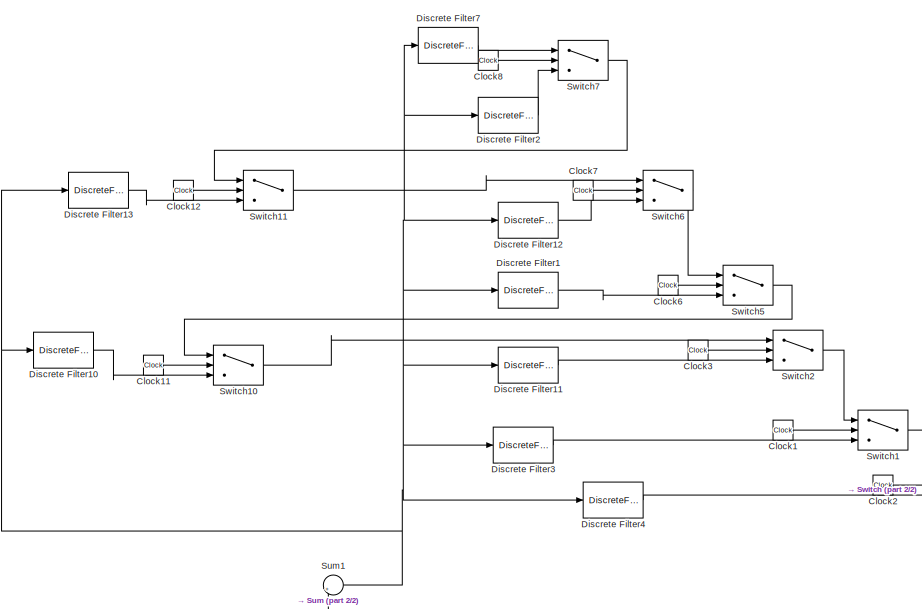
[diagram: root canvas - part 1/2, left side, full height]
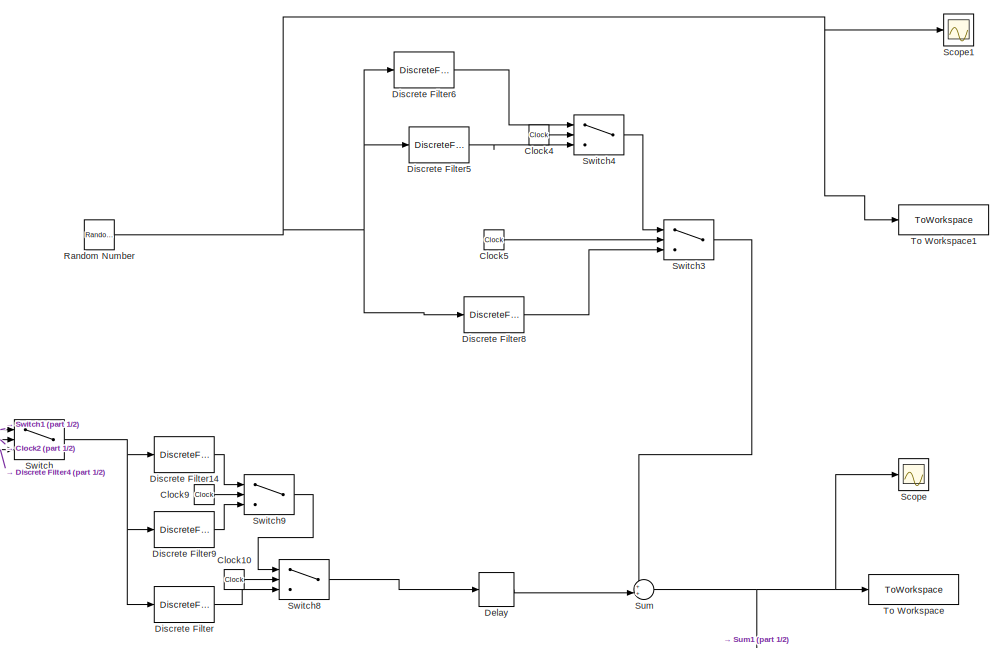
[diagram: root canvas - part 2/2, right side, full height]
MODEL slx_4a99604da0e6
KIND model
CONFIG AbsTol = auto
CONFIG EnableMultiTasking = off
CONFIG FixedStep = auto
CONFIG MaxStep = auto
CONFIG MinStep = auto
CONFIG RelTol = 1e-3
CONFIG SampleTimeConstraint = Unconstrained
CONFIG SolverName = VariableStepAuto
CONFIG StartTime = 0.0
CONFIG StopTime = 8500
BLOCK [Clock] Clock1
BLOCK [Clock] Clock10
BLOCK [Clock] Clock11
BLOCK [Clock] Clock12
BLOCK [Clock] Clock2
BLOCK [Clock] Clock3
BLOCK [Clock] Clock4
BLOCK [Clock] Clock5
BLOCK [Clock] Clock6
BLOCK [Clock] Clock7
BLOCK [Clock] Clock8
BLOCK [Clock] Clock9
BLOCK [Delay] Delay
  DelayLength = 6
  InputPortMap = u0
  Ports = [1, 1]
  SampleTime = 0.1
BLOCK [DiscreteFilter] Discrete Filter
  Denominator = [1 -0.8]
  InputPortMap = u0
  Ports = [1, 1]
  SampleTime = 0.1
BLOCK [DiscreteFilter] Discrete Filter1
  Denominator = [1 -1]
  InputPortMap = u0
  Numerator = [0.2387 -0.462 0.2301]*2.5
  Ports = [1, 1]
  SampleTime = 0.1
BLOCK [DiscreteFilter] Discrete Filter10
  Denominator = [1 -1]
  InputPortMap = u0
  Numerator = [0.2387 -0.462 0.2301]*2
  Ports = [1, 1]
  SampleTime = 0.1
BLOCK [DiscreteFilter] Discrete Filter11
  Denominator = [1 -1]
  InputPortMap = u0
  Numerator = [0.2387 -0.462 0.2301]
  Ports = [1, 1]
  SampleTime = 0.1
BLOCK [DiscreteFilter] Discrete Filter12
  Denominator = [1 -1]
  InputPortMap = u0
  Numerator = [0.1541 -0.3037 0.1509]
  Ports = [1, 1]
  SampleTime = 0.1
BLOCK [DiscreteFilter] Discrete Filter13
  Denominator = [1 -1]
  InputPortMap = u0
  Numerator = [0.1541 -0.3037 0.1509]*2
  Ports = [1, 1]
  SampleTime = 0.1
BLOCK [DiscreteFilter] Discrete Filter14
  Denominator = [1 -0.9]
  InputPortMap = u0
  Ports = [1, 1]
  SampleTime = 0.1
BLOCK [DiscreteFilter] Discrete Filter2
  Denominator = [1 -1]
  InputPortMap = u0
  Numerator = [0.1541 -0.3037 0.1509]*3
  Ports = [1, 1]
  SampleTime = 0.1
BLOCK [DiscreteFilter] Discrete Filter3
  Denominator = [1 -1]
  InputPortMap = u0
  Numerator = [0.11 -0.19 0.086]*4
  Ports = [1, 1]
  SampleTime = 0.1
BLOCK [DiscreteFilter] Discrete Filter4
  Denominator = [1 -1]
  InputPortMap = u0
  Numerator = [0.11 -0.19 0.086]*5
  Ports = [1, 1]
  SampleTime = 0.1
BLOCK [DiscreteFilter] Discrete Filter5
  Denominator = [1 -0.35 -0.47 0.21]
  InputPortMap = u0
  Numerator = [1 0.6]
  Ports = [1, 1]
  SampleTime = 0.1
BLOCK [DiscreteFilter] Discrete Filter6
  Denominator = [1 -0.375 -0.47 0.21]
  InputPortMap = u0
  Numerator = [1 0.6]
  Ports = [1, 1]
  SampleTime = 0.1
BLOCK [DiscreteFilter] Discrete Filter7
  Denominator = [1 -1]
  InputPortMap = u0
  Numerator = [0.1665 -0.3277 0.163]
  Ports = [1, 1]
  SampleTime = 0.1
BLOCK [DiscreteFilter] Discrete Filter8
  Denominator = [1 -0.4 -0.47 0.21]
  InputPortMap = u0
  Numerator = [1 0.6]
  Ports = [1, 1]
  SampleTime = 0.1
BLOCK [DiscreteFilter] Discrete Filter9
  Denominator = [1 -0.8]
  InputPortMap = u0
  Ports = [1, 1]
  SampleTime = 0.1
BLOCK [RandomNumber] Random Number
  SampleTime = 0.1
  Seed = se
BLOCK [Scope] Scope
  Floating = off
  NumInputPorts = 1
  Ports = [1]
  ScopeSpecificationString = Simulink.scopes.TimeScopeBlockCfg('CurrentConfiguration', extmgr.ConfigurationSet(extmgr.Configuration('Core','General UI',true),extmgr.Configuration('Core','Source UI',true),extmgr.Configuration('Sources','WiredSimulink',true,'DataLoggingVariableName','ScopeData1'),extmgr.Configuration('Visuals','Time Domain',true,'SerializedDisplays',{struct('MinYLimReal','-10.34161','MaxYLimReal','10.01666','YL...<+1397ch>
BLOCK [Scope] Scope1
  Floating = off
  NumInputPorts = 1
  Ports = [1]
  ScopeSpecificationString = Simulink.scopes.TimeScopeBlockCfg('CurrentConfiguration', extmgr.ConfigurationSet(extmgr.Configuration('Core','General UI',true),extmgr.Configuration('Core','Source UI',true),extmgr.Configuration('Sources','WiredSimulink',true),extmgr.Configuration('Visuals','Time Domain',true,'SerializedDisplays',{struct('MinYLimReal','-9.08382','MaxYLimReal','9.68399','YLabelReal','','MinYLimMag','0.00000','MaxY...<+1352ch>
BLOCK [Sum] Sum
  Inputs = ++|
  Ports = [2, 1]
BLOCK [Sum] Sum1
  Inputs = |+-
  Ports = [2, 1]
BLOCK [Switch] Switch
  Criteria = u2 > Threshold
  InputSameDT = off
  SaturateOnIntegerOverflow = off
  Threshold = 1500
BLOCK [Switch] Switch1
  Criteria = u2 > Threshold
  InputSameDT = off
  SaturateOnIntegerOverflow = off
  Threshold = 2000
BLOCK [Switch] Switch10
  Criteria = u2 > Threshold
  InputSameDT = off
  SaturateOnIntegerOverflow = off
  Threshold = 4000
BLOCK [Switch] Switch11
  Criteria = u2 > Threshold
  InputSameDT = off
  SaturateOnIntegerOverflow = off
  Threshold = 6500
BLOCK [Switch] Switch2
  Criteria = u2 > Threshold
  InputSameDT = off
  SaturateOnIntegerOverflow = off
  Threshold = 3500
BLOCK [Switch] Switch3
  Criteria = u2 > Threshold
  InputSameDT = off
  SaturateOnIntegerOverflow = off
  Threshold = 3500
BLOCK [Switch] Switch4
  Criteria = u2 > Threshold
  InputSameDT = off
  SaturateOnIntegerOverflow = off
  Threshold = 6000
BLOCK [Switch] Switch5
  Criteria = u2 > Threshold
  InputSameDT = off
  SaturateOnIntegerOverflow = off
  Threshold = 4500
BLOCK [Switch] Switch6
  Criteria = u2 > Threshold
  InputSameDT = off
  SaturateOnIntegerOverflow = off
  Threshold = 6000
BLOCK [Switch] Switch7
  Criteria = u2 > Threshold
  InputSameDT = off
  SaturateOnIntegerOverflow = off
  Threshold = 7000
BLOCK [Switch] Switch8
  Criteria = u2 > Threshold
  InputSameDT = off
  SaturateOnIntegerOverflow = off
  Threshold = 3500
BLOCK [Switch] Switch9
  Criteria = u2 > Threshold
  InputSameDT = off
  SaturateOnIntegerOverflow = off
  Threshold = 6000
BLOCK [ToWorkspace] To Workspace
  FixptAsFi = on
  MaxDataPoints = inf
  Ports = [1]
  SampleTime = 0.1
  VariableName = y1
BLOCK [ToWorkspace] To Workspace1
  FixptAsFi = on
  MaxDataPoints = inf
  Ports = [1]
  SampleTime = 0.1
  VariableName = y2
LINE Clock10:1 -> Switch8:2
LINE Clock11:1 -> Switch10:2
LINE Clock12:1 -> Switch11:2
LINE Clock1:1 -> Switch1:2
LINE Clock2:1 -> Switch:2
LINE Clock3:1 -> Switch2:2
LINE Clock4:1 -> Switch4:2
LINE Clock5:1 -> Switch3:2
LINE Clock6:1 -> Switch5:2
LINE Clock7:1 -> Switch6:2
LINE Clock8:1 -> Switch7:2
LINE Clock9:1 -> Switch9:2
LINE Delay:1 -> Sum:2
LINE Discrete Filter10:1 -> Switch10:3
LINE Discrete Filter11:1 -> Switch2:3
LINE Discrete Filter12:1 -> Switch6:3
LINE Discrete Filter13:1 -> Switch11:3
LINE Discrete Filter14:1 -> Switch9:1
LINE Discrete Filter1:1 -> Switch5:3
LINE Discrete Filter2:1 -> Switch7:3
LINE Discrete Filter3:1 -> Switch1:3
LINE Discrete Filter4:1 -> Switch:3
LINE Discrete Filter5:1 -> Switch4:3
LINE Discrete Filter6:1 -> Switch4:1
LINE Discrete Filter7:1 -> Switch7:1
LINE Discrete Filter8:1 -> Switch3:3
LINE Discrete Filter9:1 -> Switch9:3
LINE Discrete Filter:1 -> Switch8:3
NET Random Number:1 -> Discrete Filter5:1, Discrete Filter6:1, Discrete Filter8:1, Scope1:1, To Workspace1:1
NET Sum1:1 -> Discrete Filter10:1, Discrete Filter11:1, Discrete Filter12:1, Discrete Filter13:1, Discrete Filter1:1, Discrete Filter2:1, Discrete Filter3:1, Discrete Filter4:1, Discrete Filter7:1
NET Sum:1 -> Scope:1, Sum1:2, To Workspace:1
LINE Switch10:1 -> Switch2:1
LINE Switch11:1 -> Switch6:1
LINE Switch1:1 -> Switch:1
LINE Switch2:1 -> Switch1:1
LINE Switch3:1 -> Sum:1
LINE Switch4:1 -> Switch3:1
LINE Switch5:1 -> Switch10:1
LINE Switch6:1 -> Switch5:1
LINE Switch7:1 -> Switch11:1
LINE Switch8:1 -> Delay:1
LINE Switch9:1 -> Switch8:1
NET Switch:1 -> Discrete Filter14:1, Discrete Filter9:1, Discrete Filter:1
note: NET lines group one-source signal fan-out (src -> all destinations, sorted); 1:1 wires keep LINE
